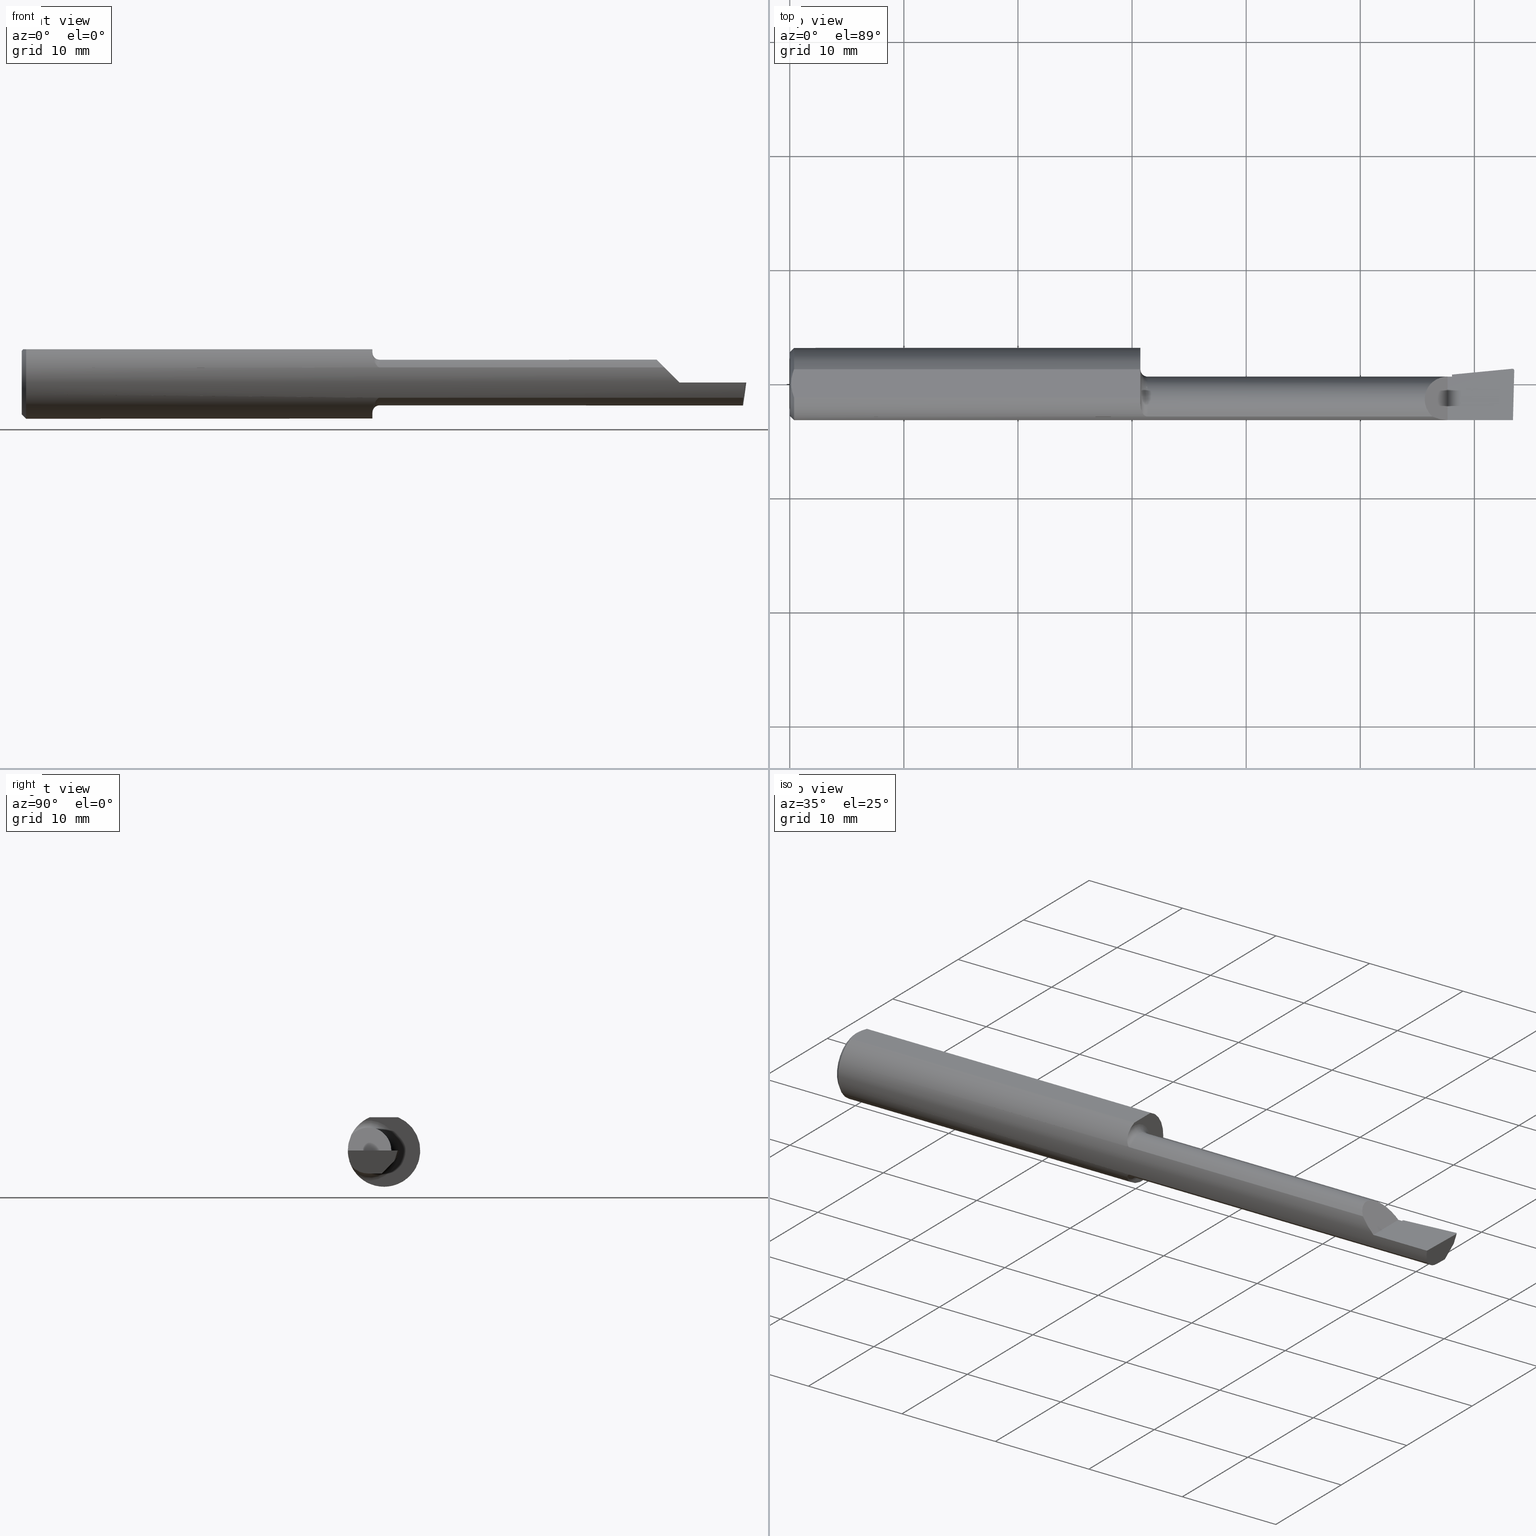
[diagram: canonical four-view strip — front | top / right | iso, engineering-drawing reading convention]
A machine part, canonical four-view strip (front | top / right | iso — engineering-drawing reading convention). The complete STEP part file that produces these views, byte-faithful:
ISO-10303-21;
HEADER;
FILE_DESCRIPTION (( 'STEP AP214' ),
    '1' );
FILE_NAME ('B1801250R.STEP',
    '2020-05-08T22:49:37',
    ( '' ),
    ( '' ),
    'SwSTEP 2.0',
    'SolidWorks 2018',
    '' );
FILE_SCHEMA (( 'AUTOMOTIVE_DESIGN' ));
ENDSEC;

DATA;
#1 = CARTESIAN_POINT ( 'NONE',  ( 2.510715839651728842, 0.04619605541595023929, -0.02600000000000000228 ) ) ;
#2 = PRESENTATION_LAYER_ASSIGNMENT (  '', '', ( #14 ) ) ;
#3 = PRESENTATION_STYLE_ASSIGNMENT (( #594 ) ) ;
#4 = DIRECTION ( 'NONE',  ( -0.09165774897393340337, 0.9519021185660615503, -0.2923717047227299970 ) ) ;
#5 = ORIENTED_EDGE ( 'NONE', *, *, #138, .T. ) ;
#6 = CARTESIAN_POINT ( 'NONE',  ( 1.760000000000000009, -0.1133222222222223657, -0.05239843939104725512 ) ) ;
#7 = DIRECTION ( 'NONE',  ( 1.000000000000000000, 0.0000000000000000000, 0.0000000000000000000 ) ) ;
#8 = ORIENTED_EDGE ( 'NONE', *, *, #373, .F. ) ;
#9 = ADVANCED_FACE ( 'NONE', ( #666 ), #220, .F. ) ;
#10 = VECTOR ( 'NONE', #166, 39.37007874015748143 ) ;
#11 = VERTEX_POINT ( 'NONE', #477 ) ;
#12 = SHAPE_DEFINITION_REPRESENTATION ( #105, #656 ) ;
#13 = CARTESIAN_POINT ( 'NONE',  ( 2.270000000000000018, 0.02514999999999986691, 2.816687638038912303E-17 ) ) ;
#14 = STYLED_ITEM ( 'NONE', ( #79 ), #84 ) ;
#15 = ORIENTED_EDGE ( 'NONE', *, *, #226, .T. ) ;
#16 = DIRECTION ( 'NONE',  ( -1.002614254341036985E-18, -0.2936076258024056806, -0.9559260233253797923 ) ) ;
#17 = CARTESIAN_POINT ( 'NONE',  ( 2.500000000000000000, 0.1748500000000000054, 0.1148500000000000076 ) ) ;
#18 = ORIENTED_EDGE ( 'NONE', *, *, #54, .F. ) ;
#19 = CARTESIAN_POINT ( 'NONE',  ( 0.005000000000000237761, 1.454187638523587873E-17, 0.1148500000000000076 ) ) ;
#20 = CARTESIAN_POINT ( 'NONE',  ( 2.477503890861344260, 0.007285921144409711510, -0.1200395610706565808 ) ) ;
#21 = CARTESIAN_POINT ( 'NONE',  ( 0.01499999999999999424, 0.04895916665957457392, 0.1148500000000000076 ) ) ;
#22 = ORIENTED_EDGE ( 'NONE', *, *, #297, .F. ) ;
#23 = CARTESIAN_POINT ( 'NONE',  ( 2.152626807264918618, -0.05593098589442790231, 0.1173731927350792209 ) ) ;
#24 = AXIS2_PLACEMENT_3D ( 'NONE', #625, #223, #585 ) ;
#25 = CARTESIAN_POINT ( 'NONE',  ( 1.233393805215129646, -0.1133222222232597165, 0.05239843938880395929 ) ) ;
#26 = CARTESIAN_POINT ( 'NONE',  ( 1.209999999999997300, -0.07604212793636108692, 0.09921827904968770484 ) ) ;
#27 = ORIENTED_EDGE ( 'NONE', *, *, #435, .F. ) ;
#28 = ORIENTED_EDGE ( 'NONE', *, *, #408, .T. ) ;
#29 = DIRECTION ( 'NONE',  ( -0.7071067811865516806, 0.0000000000000000000, 0.7071067811865431318 ) ) ;
#30 = ADVANCED_FACE ( 'NONE', ( #62 ), #378, .F. ) ;
#31 = AXIS2_PLACEMENT_3D ( 'NONE', #662, #616, #29 ) ;
#32 = EDGE_CURVE ( 'NONE', #280, #154, #515, .T. ) ;
#33 = CARTESIAN_POINT ( 'NONE',  ( 0.01499999999999999424, 0.0000000000000000000, -0.1248500000000000026 ) ) ;
#34 = ORIENTED_EDGE ( 'NONE', *, *, #200, .T. ) ;
#35 = CARTESIAN_POINT ( 'NONE',  ( 0.009410502401328815075, 0.03310661131402416191, 0.1148500000000000076 ) ) ;
#36 = VECTOR ( 'NONE', #262, 39.37007874015749564 ) ;
#37 = EDGE_LOOP ( 'NONE', ( #5, #473 ) ) ;
#38 = AXIS2_PLACEMENT_3D ( 'NONE', #316, #143, #465 ) ;
#39 = LINE ( 'NONE', #400, #157 ) ;
#40 = EDGE_CURVE ( 'NONE', #427, #478, #112, .T. ) ;
#41 = VERTEX_POINT ( 'NONE', #152 ) ;
#42 = ORIENTED_EDGE ( 'NONE', *, *, #272, .T. ) ;
#43 = CYLINDRICAL_SURFACE ( 'NONE', #606, 0.07914999999999991487 ) ;
#44 = DIRECTION ( 'NONE',  ( -2.377784481325426013E-18, -0.6963153109074924352, -0.7177360153954948085 ) ) ;
#45 = ORIENTED_EDGE ( 'NONE', *, *, #200, .F. ) ;
#46 = LINE ( 'NONE', #469, #268 ) ;
#47 = CIRCLE ( 'NONE', #667, 0.1041499999999998677 ) ;
#48 = ORIENTED_EDGE ( 'NONE', *, *, #213, .T. ) ;
#49 = DIRECTION ( 'NONE',  ( -1.000000000000000000, -0.0000000000000000000, -0.0000000000000000000 ) ) ;
#50 = VECTOR ( 'NONE', #269, 39.37007874015748143 ) ;
#51 = ORIENTED_EDGE ( 'NONE', *, *, #292, .F. ) ;
#52 = LINE ( 'NONE', #474, #491 ) ;
#53 = CARTESIAN_POINT ( 'NONE',  ( 1.218837986083220359, -0.1048226606062679089, -0.06804511026469604873 ) ) ;
#54 = EDGE_CURVE ( 'NONE', #255, #94, #52, .T. ) ;
#55 = DIRECTION ( 'NONE',  ( -0.1240019227990222656, -0.3022330132596686703, -0.9451342385281183978 ) ) ;
#56 =( BOUNDED_CURVE ( )  B_SPLINE_CURVE ( 3, ( #567, #651, #568, #196 ),
 .UNSPECIFIED., .F., .T. ) 
 B_SPLINE_CURVE_WITH_KNOTS ( ( 4, 4 ),
 ( 1.953092279228668460, 3.511516179717886210 ),
 .UNSPECIFIED. ) 
 CURVE ( )  GEOMETRIC_REPRESENTATION_ITEM ( )  RATIONAL_B_SPLINE_CURVE ( ( 1.000000000000000000, 0.8076450242550503589, 0.8076450242550503589, 1.000000000000000000 ) ) 
 REPRESENTATION_ITEM ( '' )  );
#57 = DIRECTION ( 'NONE',  ( 0.1053106618242760639, 0.6976485211320146984, 0.7086580314005095360 ) ) ;
#58 = ORIENTED_EDGE ( 'NONE', *, *, #292, .T. ) ;
#59 = EDGE_LOOP ( 'NONE', ( #22, #211, #178, #116 ) ) ;
#60 = EDGE_CURVE ( 'NONE', #227, #222, #339, .T. ) ;
#61 = DIRECTION ( 'NONE',  ( -1.000000000000000000, -0.0000000000000000000, -0.0000000000000000000 ) ) ;
#62 = FACE_OUTER_BOUND ( 'NONE', #397, .T. ) ;
#63 = AXIS2_PLACEMENT_3D ( 'NONE', #296, #245, #560 ) ;
#64 = ORIENTED_EDGE ( 'NONE', *, *, #121, .T. ) ;
#65 = EDGE_LOOP ( 'NONE', ( #51, #417, #344 ) ) ;
#66 = DIRECTION ( 'NONE',  ( -1.000000000000000000, -0.0000000000000000000, -0.0000000000000000000 ) ) ;
#67 = APPLICATION_PROTOCOL_DEFINITION ( 'draft international standard', 'automotive_design', 1998, #243 ) ;
#68 = EDGE_CURVE ( 'NONE', #506, #158, #479, .T. ) ;
#69 = CYLINDRICAL_SURFACE ( 'NONE', #402, 0.006500000000000000569 ) ;
#70 = LINE ( 'NONE', #6, #493 ) ;
#71 = FILL_AREA_STYLE ('',( #342 ) ) ;
#72 = CARTESIAN_POINT ( 'NONE',  ( 0.01499999999999999424, 1.528971528735470422E-17, 0.1248500000000000026 ) ) ;
#73 = ORIENTED_EDGE ( 'NONE', *, *, #32, .T. ) ;
#74 = PLANE ( 'NONE',  #603 ) ;
#75 = CARTESIAN_POINT ( 'NONE',  ( 2.510715839651728842, 0.04619605541595023929, -0.02600000000000000228 ) ) ;
#76 = CARTESIAN_POINT ( 'NONE',  ( 2.486868858499483803, -0.07705019563525719595, -0.07914999999999994262 ) ) ;
#77 = EDGE_CURVE ( 'NONE', #613, #538, #461, .T. ) ;
#78 = VERTEX_POINT ( 'NONE', #522 ) ;
#79 = PRESENTATION_STYLE_ASSIGNMENT (( #204 ) ) ;
#80 = B_SPLINE_CURVE_WITH_KNOTS ( 'NONE', 3,
 ( #665, #380, #325, #549, #288, #636 ),
 .UNSPECIFIED., .F., .F.,
 ( 4, 2, 4 ),
 ( 0.001029394377391489035, 0.001663875367397493060, 0.002298356357403497086 ),
 .UNSPECIFIED. ) ;
#81 = CARTESIAN_POINT ( 'NONE',  ( 1.231855009147952318, -0.1130869929873387636, 0.05291095013438972677 ) ) ;
#82 = VECTOR ( 'NONE', #16, 39.37007874015748854 ) ;
#83 = VERTEX_POINT ( 'NONE', #33 ) ;
#84 = MANIFOLD_SOLID_BREP ( 'D34CBC68-1747-4350-8BDF-BF1BA9863E7A-GAAFaceID16', #320 ) ;
#85 = ORIENTED_EDGE ( 'NONE', *, *, #256, .T. ) ;
#86 = AXIS2_PLACEMENT_3D ( 'NONE', #369, #657, #314 ) ;
#87 =( NAMED_UNIT ( * ) SI_UNIT ( $, .STERADIAN. ) SOLID_ANGLE_UNIT ( ) );
#88 = LINE ( 'NONE', #501, #197 ) ;
#89 = COLOUR_RGB ( '',0.7529411764705882248, 0.7529411764705882248, 0.7529411764705882248 ) ;
#90 = DIRECTION ( 'NONE',  ( 0.0000000000000000000, -1.000000000000000000, 0.0000000000000000000 ) ) ;
#91 = AXIS2_PLACEMENT_3D ( 'NONE', #390, #49, #439 ) ;
#92 = EDGE_LOOP ( 'NONE', ( #257, #586, #42, #326, #490 ) ) ;
#93 =( GEOMETRIC_REPRESENTATION_CONTEXT ( 3 ) GLOBAL_UNCERTAINTY_ASSIGNED_CONTEXT ( ( #238 ) ) GLOBAL_UNIT_ASSIGNED_CONTEXT ( ( #146, #470, #87 ) ) REPRESENTATION_CONTEXT ( 'NONE', 'WORKASPACE' ) );
#94 = VERTEX_POINT ( 'NONE', #418 ) ;
#95 = ORIENTED_EDGE ( 'NONE', *, *, #77, .F. ) ;
#96 = VERTEX_POINT ( 'NONE', #366 ) ;
#97 = CARTESIAN_POINT ( 'NONE',  ( 2.285000000000000142, -0.02710165559382494982, -0.07914999999999994262 ) ) ;
#98 = AXIS2_PLACEMENT_3D ( 'NONE', #147, #472, #90 ) ;
#99 = ORIENTED_EDGE ( 'NONE', *, *, #323, .F. ) ;
#100 = CARTESIAN_POINT ( 'NONE',  ( 0.01499999999999999424, 0.0000000000000000000, -0.1248500000000000026 ) ) ;
#101 = ORIENTED_EDGE ( 'NONE', *, *, #256, .F. ) ;
#102 = ORIENTED_EDGE ( 'NONE', *, *, #423, .F. ) ;
#103 = CARTESIAN_POINT ( 'NONE',  ( 1.210000000000000187, -0.07089166666666693595, -0.1027710761704001136 ) ) ;
#104 = AXIS2_PLACEMENT_3D ( 'NONE', #324, #214, #619 ) ;
#105 = PRODUCT_DEFINITION_SHAPE ( 'NONE', 'NONE',  #621 ) ;
#106 = EDGE_CURVE ( 'NONE', #83, #569, #228, .T. ) ;
#107 = CARTESIAN_POINT ( 'NONE',  ( 2.509953961983673043, 0.05410845752520212354, -6.829619984160658046E-17 ) ) ;
#108 = APPLICATION_PROTOCOL_DEFINITION ( 'draft international standard', 'automotive_design', 1998, #509 ) ;
#109 = CIRCLE ( 'NONE', #91, 0.1248500000000000026 ) ;
#110 = AXIS2_PLACEMENT_3D ( 'NONE', #570, #202, #517 ) ;
#111 = CARTESIAN_POINT ( 'NONE',  ( 2.494935772196837487, 0.03388506613407609586, -0.03712352112763144668 ) ) ;
#112 = LINE ( 'NONE', #319, #36 ) ;
#113 = CARTESIAN_POINT ( 'NONE',  ( 2.488690395572168423, -0.007488501277203561159, -0.07914999999999992875 ) ) ;
#114 = DIRECTION ( 'NONE',  ( 0.0000000000000000000, 0.0000000000000000000, 1.000000000000000000 ) ) ;
#115 = ORIENTED_EDGE ( 'NONE', *, *, #367, .T. ) ;
#116 = ORIENTED_EDGE ( 'NONE', *, *, #440, .F. ) ;
#117 = EDGE_CURVE ( 'NONE', #270, #633, #265, .T. ) ;
#118 = CARTESIAN_POINT ( 'NONE',  ( 2.495338905960690301, -0.1248500000000000582, -6.637417838016179921E-17 ) ) ;
#119 = PLANE ( 'NONE',  #419 ) ;
#120 = CARTESIAN_POINT ( 'NONE',  ( 1.210000000000000187, 0.1748500000000000054, 0.1148500000000000076 ) ) ;
#121 = EDGE_CURVE ( 'NONE', #94, #427, #125, .T. ) ;
#122 = ORIENTED_EDGE ( 'NONE', *, *, #261, .T. ) ;
#123 = FACE_OUTER_BOUND ( 'NONE', #611, .T. ) ;
#124 = VECTOR ( 'NONE', #492, 39.37007874015748854 ) ;
#125 =( BOUNDED_CURVE ( )  B_SPLINE_CURVE ( 3, ( #144, #312, #365, #653 ),
 .UNSPECIFIED., .F., .T. ) 
 B_SPLINE_CURVE_WITH_KNOTS ( ( 4, 4 ),
 ( 3.156599629463097134, 4.715023529952358849 ),
 .UNSPECIFIED. ) 
 CURVE ( )  GEOMETRIC_REPRESENTATION_ITEM ( )  RATIONAL_B_SPLINE_CURVE ( ( 1.000000000000000000, 0.8076450242550402558, 0.8076450242550402558, 1.000000000000000000 ) ) 
 REPRESENTATION_ITEM ( '' )  );
#126 = CARTESIAN_POINT ( 'NONE',  ( 2.285000000000000142, 0.03244785463752900695, 0.0000000000000000000 ) ) ;
#127 = CARTESIAN_POINT ( 'NONE',  ( 2.217601560608951861, -0.1133222222222223519, 0.05239843939104727594 ) ) ;
#128 = CARTESIAN_POINT ( 'NONE',  ( 2.285000000000000142, 0.03244785463752900695, 0.0000000000000000000 ) ) ;
#129 = VERTEX_POINT ( 'NONE', #201 ) ;
#130 = DIRECTION ( 'NONE',  ( 0.0000000000000000000, 0.9524855432518746223, -0.3045837978228342902 ) ) ;
#131 =( CONVERSION_BASED_UNIT ( 'INCH', #206 ) LENGTH_UNIT ( ) NAMED_UNIT ( #361 ) );
#132 = ADVANCED_FACE ( 'NONE', ( #123 ), #416, .F. ) ;
#133 = B_SPLINE_CURVE_WITH_KNOTS ( 'NONE', 3,
 ( #19, #456, #374, #35, #424, #267 ),
 .UNSPECIFIED., .F., .F.,
 ( 4, 2, 4 ),
 ( 0.002298356357403497086, 0.002932796277434359007, 0.003567236197465221362 ),
 .UNSPECIFIED. ) ;
#134 = LINE ( 'NONE', #333, #540 ) ;
#135 = CARTESIAN_POINT ( 'NONE',  ( 2.234090882882976192, -0.1209466293052443298, 0.03590911711702311770 ) ) ;
#136 = ORIENTED_EDGE ( 'NONE', *, *, #155, .T. ) ;
#137 = CARTESIAN_POINT ( 'NONE',  ( 1.228003366130774765, -0.1118869025553488744, 0.05540929543234553167 ) ) ;
#138 = EDGE_CURVE ( 'NONE', #258, #129, #216, .T. ) ;
#139 = PRODUCT_DEFINITION_CONTEXT ( 'detailed design', #243, 'design' ) ;
#140 = CYLINDRICAL_SURFACE ( 'NONE', #516, 0.006500000000000000569 ) ;
#141 = ORIENTED_EDGE ( 'NONE', *, *, #117, .T. ) ;
#142 = EDGE_LOOP ( 'NONE', ( #371, #428, #263, #659 ) ) ;
#143 = DIRECTION ( 'NONE',  ( -4.194046792260684025E-16, 0.0000000000000000000, -1.000000000000000000 ) ) ;
#144 = CARTESIAN_POINT ( 'NONE',  ( 2.490095884891770694, 0.04416786174452201619, -0.02604403198038579906 ) ) ;
#145 = ORIENTED_EDGE ( 'NONE', *, *, #188, .T. ) ;
#146 =( CONVERSION_BASED_UNIT ( 'INCH', #354 ) LENGTH_UNIT ( ) NAMED_UNIT ( #511 ) );
#147 = CARTESIAN_POINT ( 'NONE',  ( 2.285000000000000142, -0.05399999999999999939, 0.0000000000000000000 ) ) ;
#148 = ORIENTED_EDGE ( 'NONE', *, *, #367, .F. ) ;
#149 = AXIS2_PLACEMENT_3D ( 'NONE', #574, #208, #525 ) ;
#150 = VECTOR ( 'NONE', #66, 39.37007874015748143 ) ;
#151 = EDGE_CURVE ( 'NONE', #478, #255, #56, .T. ) ;
#152 = CARTESIAN_POINT ( 'NONE',  ( 2.492906680581910006, 0.05246699102467097114, -6.532122848641467145E-17 ) ) ;
#153 = CARTESIAN_POINT ( 'NONE',  ( 1.210000000000000187, 0.04895916665957456004, 0.1148500000000000076 ) ) ;
#154 = VERTEX_POINT ( 'NONE', #413 ) ;
#155 = EDGE_CURVE ( 'NONE', #562, #280, #193, .T. ) ;
#156 = CARTESIAN_POINT ( 'NONE',  ( 2.285000000000000142, 0.02898381944558134707, -0.01127818590082938985 ) ) ;
#157 = VECTOR ( 'NONE', #454, 39.37007874015748143 ) ;
#158 = VERTEX_POINT ( 'NONE', #415 ) ;
#159 = ADVANCED_FACE ( 'NONE', ( #321 ), #608, .T. ) ;
#160 = ORIENTED_EDGE ( 'NONE', *, *, #218, .T. ) ;
#161 = DIRECTION ( 'NONE',  ( 0.0000000000000000000, 0.0000000000000000000, -1.000000000000000000 ) ) ;
#162 = EDGE_CURVE ( 'NONE', #11, #478, #301, .T. ) ;
#163 = CARTESIAN_POINT ( 'NONE',  ( 2.285000000000000142, -0.05399999999999999939, 0.0000000000000000000 ) ) ;
#164 = ORIENTED_EDGE ( 'NONE', *, *, #363, .T. ) ;
#165 = CARTESIAN_POINT ( 'NONE',  ( 2.285000000000000142, 0.005014495618354286935, -0.04604586163080774674 ) ) ;
#166 = DIRECTION ( 'NONE',  ( 0.9953961983671787417, 0.09584575252022459191, -4.174738232790345673E-16 ) ) ;
#167 = ORIENTED_EDGE ( 'NONE', *, *, #235, .T. ) ;
#168 = DIRECTION ( 'NONE',  ( 0.0000000000000000000, 0.0000000000000000000, -1.000000000000000000 ) ) ;
#169 = CIRCLE ( 'NONE', #450, 0.1098499999999996424 ) ;
#170 = PLANE ( 'NONE',  #532 ) ;
#171 = EDGE_LOOP ( 'NONE', ( #164, #372, #349, #551, #145, #463 ) ) ;
#172 = CARTESIAN_POINT ( 'NONE',  ( 1.229195140613335457, -0.1123729516825158897, -0.05441079362540557351 ) ) ;
#173 = VECTOR ( 'NONE', #57, 39.37007874015748854 ) ;
#174 = VERTEX_POINT ( 'NONE', #21 ) ;
#175 = EDGE_CURVE ( 'NONE', #221, #158, #46, .T. ) ;
#176 = CARTESIAN_POINT ( 'NONE',  ( 2.489204846642126157, -0.1133222222222223657, -0.05239843939104725512 ) ) ;
#177 = DIRECTION ( 'NONE',  ( 0.0000000000000000000, 0.9524855432518746223, -0.3045837978228342902 ) ) ;
#178 = ORIENTED_EDGE ( 'NONE', *, *, #313, .F. ) ;
#179 = VECTOR ( 'NONE', #44, 39.37007874015748854 ) ;
#180 = ADVANCED_FACE ( 'NONE', ( #443 ), #604, .T. ) ;
#181 = DIRECTION ( 'NONE',  ( 0.0000000000000000000, -1.000000000000000000, 0.0000000000000000000 ) ) ;
#182 = AXIS2_PLACEMENT_3D ( 'NONE', #396, #114, #246 ) ;
#183 = DIRECTION ( 'NONE',  ( 1.000000000000000000, -3.414809992080329023E-18, 0.0000000000000000000 ) ) ;
#184 = DIRECTION ( 'NONE',  ( -3.414809992080329023E-18, -1.000000000000000000, 0.0000000000000000000 ) ) ;
#185 = CARTESIAN_POINT ( 'NONE',  ( 2.270000000000000018, -0.1248500000000000165, 2.816687638038912303E-17 ) ) ;
#186 =( GEOMETRIC_REPRESENTATION_CONTEXT ( 3 ) GLOBAL_UNCERTAINTY_ASSIGNED_CONTEXT ( ( #502 ) ) GLOBAL_UNIT_ASSIGNED_CONTEXT ( ( #357, #348, #512 ) ) REPRESENTATION_CONTEXT ( 'NONE', 'WORKASPACE' ) );
#187 = CARTESIAN_POINT ( 'NONE',  ( 2.487482489302630828, -0.09806266089631200666, -0.06967435635555044304 ) ) ;
#188 = EDGE_CURVE ( 'NONE', #382, #78, #434, .T. ) ;
#189 = ADVANCED_FACE ( 'NONE', ( #310 ), #295, .T. ) ;
#190 = ORIENTED_EDGE ( 'NONE', *, *, #363, .F. ) ;
#191 = CARTESIAN_POINT ( 'NONE',  ( 2.490095884891770694, 0.04416786174452201619, -0.02604403198038579906 ) ) ;
#192 = DIRECTION ( 'NONE',  ( 3.414809992080329023E-18, 1.000000000000000000, 0.0000000000000000000 ) ) ;
#193 = B_SPLINE_CURVE_WITH_KNOTS ( 'NONE', 3,
 ( #362, #26, #650, #307, #609, #250, #566, #195, #513, #137, #462, #81, #25, #359 ),
 .UNSPECIFIED., .F., .F.,
 ( 4, 2, 2, 2, 2, 2, 4 ),
 ( 6.218642020841704367E-05, 0.0005341583913332085317, 0.001006130362457999857, 0.001478102333582790966, 0.001714088319145186520, 0.001832081311926387658, 0.001950074304707597470 ),
 .UNSPECIFIED. ) ;
#194 = ORIENTED_EDGE ( 'NONE', *, *, #391, .F. ) ;
#195 = CARTESIAN_POINT ( 'NONE',  ( 1.223217602974939755, -0.1090277136498279537, 0.06089509507572530428 ) ) ;
#196 = CARTESIAN_POINT ( 'NONE',  ( 2.493512870449331675, 0.05249616680637380489, -5.122214988120493535E-17 ) ) ;
#197 = VECTOR ( 'NONE', #183, 39.37007874015748143 ) ;
#198 = EDGE_LOOP ( 'NONE', ( #332, #205 ) ) ;
#199 = CIRCLE ( 'NONE', #249, 0.07914999999999995650 ) ;
#200 = EDGE_CURVE ( 'NONE', #280, #96, #88, .T. ) ;
#201 = CARTESIAN_POINT ( 'NONE',  ( 0.0000000000000000000, 1.437123018799416669E-17, 0.1098499999999996424 ) ) ;
#202 = DIRECTION ( 'NONE',  ( -1.000000000000000000, -0.0000000000000000000, -0.0000000000000000000 ) ) ;
#203 = MECHANICAL_DESIGN_GEOMETRIC_PRESENTATION_REPRESENTATION (  '', ( #14 ), #93 ) ;
#204 = SURFACE_STYLE_USAGE ( .BOTH. , #572 ) ;
#205 = ORIENTED_EDGE ( 'NONE', *, *, #276, .T. ) ;
#206 = LENGTH_MEASURE_WITH_UNIT ( LENGTH_MEASURE( 0.02539999999999999897 ), #598 );
#207 = LINE ( 'NONE', #75, #387 ) ;
#208 = DIRECTION ( 'NONE',  ( -1.000000000000000000, 3.414809992080329023E-18, -0.0000000000000000000 ) ) ;
#209 = VECTOR ( 'NONE', #247, 39.37007874015748854 ) ;
#210 = ORIENTED_EDGE ( 'NONE', *, *, #272, .F. ) ;
#211 = ORIENTED_EDGE ( 'NONE', *, *, #54, .T. ) ;
#212 = DIRECTION ( 'NONE',  ( 0.0000000000000000000, -1.000000000000000000, 8.537024980200821325E-17 ) ) ;
#213 = EDGE_CURVE ( 'NONE', #78, #227, #39, .T. ) ;
#214 = DIRECTION ( 'NONE',  ( -1.000000000000000000, 3.414809992080329023E-18, -0.0000000000000000000 ) ) ;
#215 = PLANE ( 'NONE',  #352 ) ;
#216 = CIRCLE ( 'NONE', #277, 0.1098499999999996424 ) ;
#217 = ORIENTED_EDGE ( 'NONE', *, *, #213, .F. ) ;
#218 = EDGE_CURVE ( 'NONE', #293, #174, #133, .T. ) ;
#219 = DIRECTION ( 'NONE',  ( 0.0000000000000000000, -1.000000000000000000, 0.0000000000000000000 ) ) ;
#220 = TOROIDAL_SURFACE ( 'NONE', #104, 0.1041499999999998677, 0.02499999999999993894 ) ;
#221 = VERTEX_POINT ( 'NONE', #426 ) ;
#222 = VERTEX_POINT ( 'NONE', #97 ) ;
#223 = DIRECTION ( 'NONE',  ( 1.000000000000000000, -3.414809992080329023E-18, 0.0000000000000000000 ) ) ;
#224 = CARTESIAN_POINT ( 'NONE',  ( 1.210000000000000187, -0.04895916665957457392, 0.1148500000000000215 ) ) ;
#225 = PLANE ( 'NONE',  #664 ) ;
#226 = EDGE_CURVE ( 'NONE', #129, #293, #460, .T. ) ;
#227 = VERTEX_POINT ( 'NONE', #481 ) ;
#228 = CIRCLE ( 'NONE', #110, 0.1248500000000000026 ) ;
#229 = CARTESIAN_POINT ( 'NONE',  ( 1.216709462345916481, -0.1014961360546401126, -0.07295290821911692980 ) ) ;
#230 = DIRECTION ( 'NONE',  ( -1.000000000000000000, 3.414809992080329023E-18, -0.0000000000000000000 ) ) ;
#231 = CARTESIAN_POINT ( 'NONE',  ( 2.285000000000000142, 0.005014495618354286935, -0.04604586163080774674 ) ) ;
#232 = ORIENTED_EDGE ( 'NONE', *, *, #440, .T. ) ;
#233 = ADVANCED_FACE ( 'NONE', ( #615 ), #626, .T. ) ;
#234 = CARTESIAN_POINT ( 'NONE',  ( 0.0000000000000000000, 0.0000000000000000000, 0.0000000000000000000 ) ) ;
#235 = EDGE_CURVE ( 'NONE', #633, #41, #486, .T. ) ;
#236 = EDGE_CURVE ( 'NONE', #336, #270, #438, .T. ) ;
#237 = CARTESIAN_POINT ( 'NONE',  ( 0.01499999999999999424, 0.0000000000000000000, 0.0000000000000000000 ) ) ;
#238 = UNCERTAINTY_MEASURE_WITH_UNIT (LENGTH_MEASURE( 1.000000000000000082E-05 ), #146, 'distance_accuracy_value', 'NONE');
#239 = DIRECTION ( 'NONE',  ( -1.000000000000000000, 3.414809992080329023E-18, -0.0000000000000000000 ) ) ;
#240 = VERTEX_POINT ( 'NONE', #224 ) ;
#241 = DIRECTION ( 'NONE',  ( 0.0000000000000000000, -1.000000000000000000, 0.0000000000000000000 ) ) ;
#242 = DIRECTION ( 'NONE',  ( -1.000000000000000000, 3.414809992080329023E-18, 0.0000000000000000000 ) ) ;
#243 = APPLICATION_CONTEXT ( 'automotive_design' ) ;
#244 = EDGE_CURVE ( 'NONE', #240, #562, #545, .T. ) ;
#245 = DIRECTION ( 'NONE',  ( -1.000000000000000000, 3.414809992080329023E-18, 0.0000000000000000000 ) ) ;
#246 = DIRECTION ( 'NONE',  ( 1.000000000000000000, 0.0000000000000000000, 0.0000000000000000000 ) ) ;
#247 = DIRECTION ( 'NONE',  ( 0.02617694830793555402, 0.9996573249755555945, -1.124167145980600393E-17 ) ) ;
#248 = PRODUCT_CONTEXT ( 'NONE', #509, 'mechanical' ) ;
#249 = AXIS2_PLACEMENT_3D ( 'NONE', #601, #239, #181 ) ;
#250 = CARTESIAN_POINT ( 'NONE',  ( 1.216702553529778186, -0.1014824713796366601, 0.07297083456247520361 ) ) ;
#251 = ORIENTED_EDGE ( 'NONE', *, *, #386, .F. ) ;
#252 = ORIENTED_EDGE ( 'NONE', *, *, #471, .T. ) ;
#253 = DIRECTION ( 'NONE',  ( 0.0000000000000000000, 0.0000000000000000000, 1.000000000000000000 ) ) ;
#254 =( BOUNDED_CURVE ( )  B_SPLINE_CURVE ( 3, ( #185, #329, #135, #127 ),
 .UNSPECIFIED., .F., .T. ) 
 B_SPLINE_CURVE_WITH_KNOTS ( ( 4, 4 ),
 ( 4.712388980384688786, 5.145493999647444028 ),
 .UNSPECIFIED. ) 
 CURVE ( )  GEOMETRIC_REPRESENTATION_ITEM ( )  RATIONAL_B_SPLINE_CURVE ( ( 1.000000000000000000, 0.9844293286710339430, 0.9844293286710339430, 1.000000000000000000 ) ) 
 REPRESENTATION_ITEM ( '' )  );
#255 = VERTEX_POINT ( 'NONE', #535 ) ;
#256 = EDGE_CURVE ( 'NONE', #599, #336, #476, .T. ) ;
#257 = ORIENTED_EDGE ( 'NONE', *, *, #226, .F. ) ;
#258 = VERTEX_POINT ( 'NONE', #483 ) ;
#259 = FILL_AREA_STYLE ('',( #614 ) ) ;
#260 = FACE_OUTER_BOUND ( 'NONE', #379, .T. ) ;
#261 = EDGE_CURVE ( 'NONE', #270, #158, #658, .T. ) ;
#262 = DIRECTION ( 'NONE',  ( 0.1240019227990222378, 0.3022330132596685592, 0.9451342385281183978 ) ) ;
#263 = ORIENTED_EDGE ( 'NONE', *, *, #244, .T. ) ;
#264 = STYLED_ITEM ( 'NONE', ( #3 ), #656 ) ;
#265 = LINE ( 'NONE', #654, #283 ) ;
#266 = ORIENTED_EDGE ( 'NONE', *, *, #175, .F. ) ;
#267 = CARTESIAN_POINT ( 'NONE',  ( 0.01499999999999999424, 0.04895916665957457392, 0.1148500000000000076 ) ) ;
#268 = VECTOR ( 'NONE', #644, 39.37007874015748854 ) ;
#269 = DIRECTION ( 'NONE',  ( -0.0000000000000000000, 1.000000000000000000, -0.0000000000000000000 ) ) ;
#270 = VERTEX_POINT ( 'NONE', #533 ) ;
#271 = AXIS2_PLACEMENT_3D ( 'NONE', #646, #7, #168 ) ;
#272 = EDGE_CURVE ( 'NONE', #258, #83, #589, .T. ) ;
#273 = CARTESIAN_POINT ( 'NONE',  ( 2.702822108735687789E-19, 0.02514999999999990160, 9.802154982235641300E-16 ) ) ;
#274 = DIRECTION ( 'NONE',  ( -1.000000000000000000, -0.0000000000000000000, -0.0000000000000000000 ) ) ;
#275 = LINE ( 'NONE', #165, #179 ) ;
#276 = EDGE_CURVE ( 'NONE', #158, #506, #275, .T. ) ;
#277 = AXIS2_PLACEMENT_3D ( 'NONE', #309, #610, #253 ) ;
#278 = CARTESIAN_POINT ( 'NONE',  ( 1.212089430766778220, -0.08992021952243414717, -0.08683155323701792494 ) ) ;
#279 = FACE_OUTER_BOUND ( 'NONE', #389, .T. ) ;
#280 = VERTEX_POINT ( 'NONE', #624 ) ;
#281 = CONICAL_SURFACE ( 'NONE', #271, 0.1248500000000000026, 0.7853981633974602694 ) ;
#282 = PRODUCT_DEFINITION_FORMATION_WITH_SPECIFIED_SOURCE ( 'ANY', '', #507, .NOT_KNOWN. ) ;
#283 = VECTOR ( 'NONE', #612, 39.37007874015748143 ) ;
#284 = EDGE_CURVE ( 'NONE', #569, #293, #80, .T. ) ;
#285 = CARTESIAN_POINT ( 'NONE',  ( 2.489495472034650714, 0.04415276641570021338, -0.02600000000000000228 ) ) ;
#286 = DIRECTION ( 'NONE',  ( 0.0000000000000000000, 0.0000000000000000000, 1.000000000000000000 ) ) ;
#287 = ADVANCED_FACE ( 'NONE', ( #315 ), #43, .T. ) ;
#288 = CARTESIAN_POINT ( 'NONE',  ( 0.005000000000000194393, -0.008410771716546815852, 0.1148500000000000076 ) ) ;
#289 = FACE_OUTER_BOUND ( 'NONE', #534, .T. ) ;
#290 = CARTESIAN_POINT ( 'NONE',  ( 2.493310817358693754, 0.05249616680637381877, -5.124634811486052309E-17 ) ) ;
#291 = ORIENTED_EDGE ( 'NONE', *, *, #652, .F. ) ;
#292 = EDGE_CURVE ( 'NONE', #506, #227, #199, .T. ) ;
#293 = VERTEX_POINT ( 'NONE', #637 ) ;
#294 = CARTESIAN_POINT ( 'NONE',  ( 2.183308174668249446, 0.02515000000000005426, 0.08669182533174922545 ) ) ;
#295 = PLANE ( 'NONE',  #446 ) ;
#296 = CARTESIAN_POINT ( 'NONE',  ( 2.285000000000000142, 0.03244785463752900695, 0.0000000000000000000 ) ) ;
#297 = EDGE_CURVE ( 'NONE', #255, #41, #480, .T. ) ;
#298 = DIRECTION ( 'NONE',  ( -0.1240019227990222656, -0.3022330132596686703, -0.9451342385281183978 ) ) ;
#299 = ORIENTED_EDGE ( 'NONE', *, *, #297, .T. ) ;
#300 = B_SPLINE_CURVE_WITH_KNOTS ( 'NONE', 3,
 ( #494, #395, #539, #172, #341, #337, #631, #53, #229, #536, #278, #429, #433, #103 ),
 .UNSPECIFIED., .F., .F.,
 ( 4, 2, 2, 2, 2, 2, 4 ),
 ( 1.961860195742902937E-07, 0.0001199556417433944404, 0.0002397150974672145746, 0.0004792340089148614023, 0.0009582718318101550578, 0.001437309654705448605, 0.001916347477600742260 ),
 .UNSPECIFIED. ) ;
#301 = LINE ( 'NONE', #510, #209 ) ;
#302 = VECTOR ( 'NONE', #593, 39.37007874015749564 ) ;
#303 = DIRECTION ( 'NONE',  ( 0.1219104985253554180, 0.0000000000000000000, 0.9925410975618587095 ) ) ;
#304 = MECHANICAL_DESIGN_GEOMETRIC_PRESENTATION_REPRESENTATION (  '', ( #264 ), #186 ) ;
#305 = LINE ( 'NONE', #663, #173 ) ;
#306 = ORIENTED_EDGE ( 'NONE', *, *, #495, .T. ) ;
#307 = CARTESIAN_POINT ( 'NONE',  ( 1.212066153268988922, -0.08982957272875712051, 0.08692514756739015691 ) ) ;
#308 = AXIS2_PLACEMENT_3D ( 'NONE', #647, #563, #192 ) ;
#309 = CARTESIAN_POINT ( 'NONE',  ( 0.0000000000000000000, 0.0000000000000000000, 0.0000000000000000000 ) ) ;
#310 = FACE_OUTER_BOUND ( 'NONE', #65, .T. ) ;
#311 = EDGE_LOOP ( 'NONE', ( #437, #403, #591, #34, #524, #596, #122, #375, #58, #217 ) ) ;
#312 = CARTESIAN_POINT ( 'NONE',  ( 2.493823174557825428, 0.04399139898587246800, -0.02659586115756921651 ) ) ;
#313 = EDGE_CURVE ( 'NONE', #441, #94, #526, .T. ) ;
#314 = DIRECTION ( 'NONE',  ( 0.0000000000000000000, 1.000000000000000000, 0.0000000000000000000 ) ) ;
#315 = FACE_OUTER_BOUND ( 'NONE', #311, .T. ) ;
#316 = CARTESIAN_POINT ( 'NONE',  ( 2.500000000000000000, -0.2500000000000000555, -6.829619984160658046E-17 ) ) ;
#317 = ADVANCED_FACE ( 'NONE', ( #559 ), #69, .T. ) ;
#318 = EDGE_CURVE ( 'NONE', #538, #240, #411, .T. ) ;
#319 = CARTESIAN_POINT ( 'NONE',  ( 2.500086462864389958, 0.04643897437746653117, 0.002134693520066727971 ) ) ;
#320 = CLOSED_SHELL ( 'NONE', ( #317, #561, #180, #189, #547, #468, #630, #132, #30, #605, #537, #9, #159, #287, #406, #233, #355, #643, #377 ) ) ;
#321 = FACE_OUTER_BOUND ( 'NONE', #142, .T. ) ;
#322 = CARTESIAN_POINT ( 'NONE',  ( 2.500000000000000000, -0.05399999999999999939, -0.07914999999999994262 ) ) ;
#323 = EDGE_CURVE ( 'NONE', #240, #569, #422, .T. ) ;
#324 = CARTESIAN_POINT ( 'NONE',  ( 1.235000000000000098, -0.05399999999999999939, 0.0000000000000000000 ) ) ;
#325 = CARTESIAN_POINT ( 'NONE',  ( 0.009415874254822530556, -0.03313958207962815899, 0.1148500000000000354 ) ) ;
#326 = ORIENTED_EDGE ( 'NONE', *, *, #106, .T. ) ;
#327 = ORIENTED_EDGE ( 'NONE', *, *, #236, .F. ) ;
#328 = DIRECTION ( 'NONE',  ( -3.414809992080329023E-18, -1.000000000000000000, 0.0000000000000000000 ) ) ;
#329 = CARTESIAN_POINT ( 'NONE',  ( 2.251833290544947630, -0.1248500000000000165, 0.01816670945505155857 ) ) ;
#330 = EDGE_CURVE ( 'NONE', #562, #613, #47, .T. ) ;
#331 = DIRECTION ( 'NONE',  ( -0.06894566448119622548, 0.7160281025913035613, -0.6946583704589933683 ) ) ;
#332 = ORIENTED_EDGE ( 'NONE', *, *, #68, .T. ) ;
#333 = CARTESIAN_POINT ( 'NONE',  ( 0.0000000000000000000, 0.04895916665957457392, 0.1148500000000000076 ) ) ;
#334 = ORIENTED_EDGE ( 'NONE', *, *, #335, .F. ) ;
#335 = EDGE_CURVE ( 'NONE', #96, #336, #581, .T. ) ;
#336 = VERTEX_POINT ( 'NONE', #13 ) ;
#337 = CARTESIAN_POINT ( 'NONE',  ( 1.224878942730255771, -0.1103076286869489747, -0.05852540734030606956 ) ) ;
#338 =( NAMED_UNIT ( * ) PLANE_ANGLE_UNIT ( ) SI_UNIT ( $, .RADIAN. ) );
#339 = LINE ( 'NONE', #409, #356 ) ;
#340 = ORIENTED_EDGE ( 'NONE', *, *, #495, .F. ) ;
#341 = CARTESIAN_POINT ( 'NONE',  ( 1.228018389903473562, -0.1118940578004066627, -0.05539504279880010096 ) ) ;
#342 = FILL_AREA_STYLE_COLOUR ( '', #89 ) ;
#343 = CARTESIAN_POINT ( 'NONE',  ( 2.477503890861344260, 0.007285921144409711510, -0.1200395610706565808 ) ) ;
#344 = ORIENTED_EDGE ( 'NONE', *, *, #60, .F. ) ;
#345 = CARTESIAN_POINT ( 'NONE',  ( 2.489204846642126157, -0.1133222222222223657, -0.05239843939104725512 ) ) ;
#346 = LINE ( 'NONE', #231, #542 ) ;
#347 = CARTESIAN_POINT ( 'NONE',  ( 1.210000000000000187, -0.05399999999999999245, 0.0000000000000000000 ) ) ;
#348 =( NAMED_UNIT ( * ) PLANE_ANGLE_UNIT ( ) SI_UNIT ( $, .RADIAN. ) );
#349 = ORIENTED_EDGE ( 'NONE', *, *, #162, .F. ) ;
#350 = ORIENTED_EDGE ( 'NONE', *, *, #383, .T. ) ;
#351 = DIRECTION ( 'NONE',  ( -1.000000000000000000, 3.414809992080329023E-18, -0.0000000000000000000 ) ) ;
#352 = AXIS2_PLACEMENT_3D ( 'NONE', #322, #527, #212 ) ;
#353 = DIRECTION ( 'NONE',  ( 0.7071067811865390240, 8.659560562355036396E-17, 0.7071067811865560104 ) ) ;
#354 = LENGTH_MEASURE_WITH_UNIT ( LENGTH_MEASURE( 0.02539999999999999897 ), #519 );
#355 = ADVANCED_FACE ( 'NONE', ( #388 ), #74, .F. ) ;
#356 = VECTOR ( 'NONE', #618, 39.37007874015748143 ) ;
#357 =( CONVERSION_BASED_UNIT ( 'INCH', #661 ) LENGTH_UNIT ( ) NAMED_UNIT ( #514 ) );
#358 = SURFACE_STYLE_FILL_AREA ( #71 ) ;
#359 = CARTESIAN_POINT ( 'NONE',  ( 1.235000000000000098, -0.1133222222222222547, 0.05239843939104728288 ) ) ;
#360 =( LENGTH_UNIT ( ) NAMED_UNIT ( * ) SI_UNIT ( $, .METRE. ) );
#361 = DIMENSIONAL_EXPONENTS ( 1.000000000000000000, 0.0000000000000000000, 0.0000000000000000000, 0.0000000000000000000, 0.0000000000000000000, 0.0000000000000000000, 0.0000000000000000000 ) ;
#362 = CARTESIAN_POINT ( 'NONE',  ( 1.210000000000000187, -0.07089166666666693595, 0.1027710761704001136 ) ) ;
#363 = EDGE_CURVE ( 'NONE', #392, #427, #305, .T. ) ;
#364 = ORIENTED_EDGE ( 'NONE', *, *, #318, .F. ) ;
#365 = CARTESIAN_POINT ( 'NONE',  ( 2.495820705304510057, 0.03974745711304673162, -0.03116861643763595147 ) ) ;
#366 = CARTESIAN_POINT ( 'NONE',  ( 2.217601560608951861, -0.1133222222222223519, 0.05239843939104727594 ) ) ;
#367 = EDGE_CURVE ( 'NONE', #392, #222, #368, .T. ) ;
#368 = LINE ( 'NONE', #558, #384 ) ;
#369 = CARTESIAN_POINT ( 'NONE',  ( 1.210000000000000187, 0.0000000000000000000, 0.0000000000000000000 ) ) ;
#370 =( GEOMETRIC_REPRESENTATION_CONTEXT ( 3 ) GLOBAL_UNCERTAINTY_ASSIGNED_CONTEXT ( ( #407 ) ) GLOBAL_UNIT_ASSIGNED_CONTEXT ( ( #131, #338, #550 ) ) REPRESENTATION_CONTEXT ( 'NONE', 'WORKASPACE' ) );
#371 = ORIENTED_EDGE ( 'NONE', *, *, #77, .T. ) ;
#372 = ORIENTED_EDGE ( 'NONE', *, *, #40, .T. ) ;
#373 = EDGE_CURVE ( 'NONE', #633, #221, #638, .T. ) ;
#374 = CARTESIAN_POINT ( 'NONE',  ( 0.005947935873631425563, 0.01679708999422678192, 0.1148499999999999938 ) ) ;
#375 = ORIENTED_EDGE ( 'NONE', *, *, #68, .F. ) ;
#376 = CARTESIAN_POINT ( 'NONE',  ( 2.499806390372796727, 0.04575634663142228581, -6.829273631983890043E-17 ) ) ;
#377 = ADVANCED_FACE ( 'NONE', ( #500 ), #140, .T. ) ;
#378 = PLANE ( 'NONE',  #31 ) ;
#379 = EDGE_LOOP ( 'NONE', ( #364, #571, #398, #385, #99 ) ) ;
#380 = CARTESIAN_POINT ( 'NONE',  ( 0.01195732443765553168, -0.04120008761723500251, 0.1148500000000000215 ) ) ;
#381 = EDGE_LOOP ( 'NONE', ( #148, #28, #48, #592 ) ) ;
#382 = VERTEX_POINT ( 'NONE', #176 ) ;
#383 = EDGE_CURVE ( 'NONE', #154, #613, #300, .T. ) ;
#384 = VECTOR ( 'NONE', #455, 39.37007874015748854 ) ;
#385 = ORIENTED_EDGE ( 'NONE', *, *, #284, .F. ) ;
#386 = EDGE_CURVE ( 'NONE', #129, #258, #169, .T. ) ;
#387 = VECTOR ( 'NONE', #412, 39.37007874015748854 ) ;
#388 = FACE_OUTER_BOUND ( 'NONE', #198, .T. ) ;
#389 = EDGE_LOOP ( 'NONE', ( #167, #232, #575, #8 ) ) ;
#390 = CARTESIAN_POINT ( 'NONE',  ( 0.01499999999999999424, 0.0000000000000000000, 0.0000000000000000000 ) ) ;
#391 = EDGE_CURVE ( 'NONE', #174, #83, #109, .T. ) ;
#392 = VERTEX_POINT ( 'NONE', #113 ) ;
#393 = DIRECTION ( 'NONE',  ( 0.0000000000000000000, 0.2936076258024056806, 0.9559260233253795702 ) ) ;
#394 = SURFACE_SIDE_STYLE ('',( #358 ) ) ;
#395 = CARTESIAN_POINT ( 'NONE',  ( 1.233397973893801014, -0.1133222222222223241, -0.05239843939104728288 ) ) ;
#396 = CARTESIAN_POINT ( 'NONE',  ( 0.0000000000000000000, 0.0000000000000000000, 0.0000000000000000000 ) ) ;
#397 = EDGE_LOOP ( 'NONE', ( #334, #291, #85 ) ) ;
#398 = ORIENTED_EDGE ( 'NONE', *, *, #218, .F. ) ;
#399 = ORIENTED_EDGE ( 'NONE', *, *, #121, .F. ) ;
#400 = CARTESIAN_POINT ( 'NONE',  ( 2.500000000000000000, -0.05399999999999999939, -0.07914999999999994262 ) ) ;
#401 = EDGE_CURVE ( 'NONE', #174, #538, #134, .T. ) ;
#402 = AXIS2_PLACEMENT_3D ( 'NONE', #20, #298, #130 ) ;
#403 = ORIENTED_EDGE ( 'NONE', *, *, #423, .T. ) ;
#404 = CARTESIAN_POINT ( 'NONE',  ( 2.487472449114545014, -0.05399999999999999939, -0.07914999999999994262 ) ) ;
#405 = CARTESIAN_POINT ( 'NONE',  ( 2.492906680581910006, 0.05246699102467097114, -6.532122848641467145E-17 ) ) ;
#406 = ADVANCED_FACE ( 'NONE', ( #279 ), #170, .T. ) ;
#407 = UNCERTAINTY_MEASURE_WITH_UNIT (LENGTH_MEASURE( 1.000000000000000082E-05 ), #131, 'distance_accuracy_value', 'NONE');
#408 = EDGE_CURVE ( 'NONE', #392, #78, #529, .T. ) ;
#409 = CARTESIAN_POINT ( 'NONE',  ( 2.285000000000000142, -0.05399999999999999939, -0.07914999999999994262 ) ) ;
#410 = ORIENTED_EDGE ( 'NONE', *, *, #276, .F. ) ;
#411 = LINE ( 'NONE', #120, #541 ) ;
#412 = DIRECTION ( 'NONE',  ( -0.9953961983671800740, -0.09584575252021031166, 0.0000000000000000000 ) ) ;
#413 = CARTESIAN_POINT ( 'NONE',  ( 1.235000000000000098, -0.1133222222222222825, -0.05239843939104724818 ) ) ;
#414 = ORIENTED_EDGE ( 'NONE', *, *, #622, .F. ) ;
#415 = CARTESIAN_POINT ( 'NONE',  ( 2.285000000000000142, 0.01818157456899020114, -0.03247372465149776788 ) ) ;
#416 = PLANE ( 'NONE',  #38 ) ;
#417 = ORIENTED_EDGE ( 'NONE', *, *, #435, .T. ) ;
#418 = CARTESIAN_POINT ( 'NONE',  ( 2.490095884891770694, 0.04416786174452201619, -0.02604403198038579906 ) ) ;
#419 = AXIS2_PLACEMENT_3D ( 'NONE', #498, #504, #453 ) ;
#420 = DIRECTION ( 'NONE',  ( -0.1240019227990222517, -0.3022330132596686147, -0.9451342385281183978 ) ) ;
#421 = ORIENTED_EDGE ( 'NONE', *, *, #155, .F. ) ;
#422 = LINE ( 'NONE', #645, #150 ) ;
#423 = EDGE_CURVE ( 'NONE', #382, #154, #70, .T. ) ;
#424 = CARTESIAN_POINT ( 'NONE',  ( 0.01193974418109659645, 0.04115525648180389656, 0.1148500000000000076 ) ) ;
#425 = ORIENTED_EDGE ( 'NONE', *, *, #313, .T. ) ;
#426 = CARTESIAN_POINT ( 'NONE',  ( 2.284999999999999698, 0.02446209205278016344, -0.02600000000000000575 ) ) ;
#427 = VERTEX_POINT ( 'NONE', #111 ) ;
#428 = ORIENTED_EDGE ( 'NONE', *, *, #318, .T. ) ;
#429 = CARTESIAN_POINT ( 'NONE',  ( 1.210429435078794524, -0.08094870196673345508, -0.09525057567498886046 ) ) ;
#430 = ORIENTED_EDGE ( 'NONE', *, *, #383, .F. ) ;
#431 = DIRECTION ( 'NONE',  ( 0.7071067811865390240, 0.0000000000000000000, -0.7071067811865560104 ) ) ;
#432 = VECTOR ( 'NONE', #436, 39.37007874015748143 ) ;
#433 = CARTESIAN_POINT ( 'NONE',  ( 1.209999999999999742, -0.07605073478940860277, -0.09921234202752099440 ) ) ;
#434 =( BOUNDED_CURVE ( )  B_SPLINE_CURVE ( 3, ( #505, #187, #76, #404 ),
 .UNSPECIFIED., .F., .T. ) 
 B_SPLINE_CURVE_WITH_KNOTS ( ( 4, 4 ),
 ( 5.645941690095278354, 6.493234751460115639 ),
 .UNSPECIFIED. ) 
 CURVE ( )  GEOMETRIC_REPRESENTATION_ITEM ( )  RATIONAL_B_SPLINE_CURVE ( ( 1.000000000000000000, 0.9410639745696119940, 0.9410639745696119940, 1.000000000000000000 ) ) 
 REPRESENTATION_ITEM ( '' )  );
#435 = EDGE_CURVE ( 'NONE', #506, #222, #346, .T. ) ;
#436 = DIRECTION ( 'NONE',  ( 1.000000000000000000, -3.414809992080329023E-18, 0.0000000000000000000 ) ) ;
#437 = ORIENTED_EDGE ( 'NONE', *, *, #188, .F. ) ;
#438 = LINE ( 'NONE', #273, #432 ) ;
#439 = DIRECTION ( 'NONE',  ( 0.0000000000000000000, 0.0000000000000000000, 1.000000000000000000 ) ) ;
#440 = EDGE_CURVE ( 'NONE', #41, #441, #584, .T. ) ;
#441 = VERTEX_POINT ( 'NONE', #285 ) ;
#442 = DIRECTION ( 'NONE',  ( -2.377784481325426013E-18, -0.6963153109074924352, -0.7177360153954948085 ) ) ;
#443 = FACE_OUTER_BOUND ( 'NONE', #520, .T. ) ;
#444 = VECTOR ( 'NONE', #353, 39.37007874015748143 ) ;
#445 = DIRECTION ( 'NONE',  ( 0.0000000000000000000, 1.000000000000000000, -4.882484975808304553E-17 ) ) ;
#446 = AXIS2_PLACEMENT_3D ( 'NONE', #128, #242, #556 ) ;
#447 = CARTESIAN_POINT ( 'NONE',  ( 2.493107549887203067, -0.1248500000000000026, -0.01816670945505170776 ) ) ;
#448 = PRESENTATION_LAYER_ASSIGNMENT (  '', '', ( #264 ) ) ;
#449 = EDGE_LOOP ( 'NONE', ( #251, #15, #160, #620, #210 ) ) ;
#450 = AXIS2_PLACEMENT_3D ( 'NONE', #590, #274, #628 ) ;
#451 = DIRECTION ( 'NONE',  ( -1.000000000000000000, 3.414809992080329023E-18, -0.0000000000000000000 ) ) ;
#452 = CARTESIAN_POINT ( 'NONE',  ( 2.217601560608951861, -0.1133222222222223519, 0.05239843939104727594 ) ) ;
#453 = DIRECTION ( 'NONE',  ( 0.0000000000000000000, 0.0000000000000000000, -1.000000000000000000 ) ) ;
#454 = DIRECTION ( 'NONE',  ( -1.000000000000000000, 5.691349986800549142E-18, -0.0000000000000000000 ) ) ;
#455 = DIRECTION ( 'NONE',  ( -0.9953961983671800740, -0.09584575252021028391, 1.093478026937437355E-17 ) ) ;
#456 = CARTESIAN_POINT ( 'NONE',  ( 0.005000000000000195260, 0.008410227287019747533, 0.1148500000000000215 ) ) ;
#457 =( BOUNDED_CURVE ( )  B_SPLINE_CURVE ( 3, ( #345, #635, #447, #118 ),
 .UNSPECIFIED., .F., .F. ) 
 B_SPLINE_CURVE_WITH_KNOTS ( ( 4, 4 ),
 ( 0.9276418632516133522, 1.360746882514366929 ),
 .UNSPECIFIED. ) 
 CURVE ( )  GEOMETRIC_REPRESENTATION_ITEM ( )  RATIONAL_B_SPLINE_CURVE ( ( 1.000000000000000000, 0.9844293286710341651, 0.9844293286710341651, 1.000000000000000000 ) ) 
 REPRESENTATION_ITEM ( '' )  );
#458 = CARTESIAN_POINT ( 'NONE',  ( 2.489495472034650714, 0.04415276641570021338, -0.02600000000000000228 ) ) ;
#459 = ORIENTED_EDGE ( 'NONE', *, *, #175, .T. ) ;
#460 = LINE ( 'NONE', #72, #444 ) ;
#461 = CIRCLE ( 'NONE', #86, 0.1248500000000000026 ) ;
#462 = CARTESIAN_POINT ( 'NONE',  ( 1.229156347344547706, -0.1123603976562050771, 0.05443691454869334367 ) ) ;
#463 = ORIENTED_EDGE ( 'NONE', *, *, #408, .F. ) ;
#464 = ORIENTED_EDGE ( 'NONE', *, *, #235, .F. ) ;
#465 = DIRECTION ( 'NONE',  ( -1.000000000000000000, 0.0000000000000000000, 4.194046792260684025E-16 ) ) ;
#466 = ORIENTED_EDGE ( 'NONE', *, *, #323, .T. ) ;
#467 = CYLINDRICAL_SURFACE ( 'NONE', #485, 0.1248500000000000026 ) ;
#468 = ADVANCED_FACE ( 'NONE', ( #289 ), #467, .T. ) ;
#469 = CARTESIAN_POINT ( 'NONE',  ( 2.285000000000000142, 0.005014495618354286935, -0.04604586163080774674 ) ) ;
#470 =( NAMED_UNIT ( * ) PLANE_ANGLE_UNIT ( ) SI_UNIT ( $, .RADIAN. ) );
#471 = EDGE_CURVE ( 'NONE', #382, #11, #457, .T. ) ;
#472 = DIRECTION ( 'NONE',  ( 1.000000000000000000, -3.414809992080329023E-18, 0.0000000000000000000 ) ) ;
#473 = ORIENTED_EDGE ( 'NONE', *, *, #386, .T. ) ;
#474 = CARTESIAN_POINT ( 'NONE',  ( 2.477503890861344260, 0.01347707717554689696, -0.1220193557565049935 ) ) ;
#475 = ORIENTED_EDGE ( 'NONE', *, *, #652, .T. ) ;
#476 = LINE ( 'NONE', #668, #50 ) ;
#477 = CARTESIAN_POINT ( 'NONE',  ( 2.495338905960690301, -0.1248500000000000582, -6.637417838016179921E-17 ) ) ;
#478 = VERTEX_POINT ( 'NONE', #376 ) ;
#479 = CIRCLE ( 'NONE', #98, 0.07914999999999992875 ) ;
#480 =( BOUNDED_CURVE ( )  B_SPLINE_CURVE ( 3, ( #553, #290, #497, #405 ),
 .UNSPECIFIED., .F., .T. ) 
 B_SPLINE_CURVE_WITH_KNOTS ( ( 4, 4 ),
 ( 3.511516179717886210, 3.604018710826484284 ),
 .UNSPECIFIED. ) 
 CURVE ( )  GEOMETRIC_REPRESENTATION_ITEM ( )  RATIONAL_B_SPLINE_CURVE ( ( 1.000000000000000000, 0.9992870672494007511, 0.9992870672494007511, 1.000000000000000000 ) ) 
 REPRESENTATION_ITEM ( '' )  );
#481 = CARTESIAN_POINT ( 'NONE',  ( 2.285000000000000142, -0.05399999999999999939, -0.07914999999999994262 ) ) ;
#482 = EDGE_LOOP ( 'NONE', ( #136, #73, #350, #649 ) ) ;
#483 = CARTESIAN_POINT ( 'NONE',  ( 0.0000000000000000000, 0.0000000000000000000, -0.1098499999999996424 ) ) ;
#484 = CARTESIAN_POINT ( 'NONE',  ( 1.387204702863203742, -0.05399999999999999939, 3.984153547983287662E-16 ) ) ;
#485 = AXIS2_PLACEMENT_3D ( 'NONE', #234, #595, #286 ) ;
#486 = LINE ( 'NONE', #484, #10 ) ;
#487 = PLANE ( 'NONE',  #573 ) ;
#488 = FACE_OUTER_BOUND ( 'NONE', #449, .T. ) ;
#489 = DIRECTION ( 'NONE',  ( 1.000000000000000000, 0.0000000000000000000, 0.0000000000000000000 ) ) ;
#490 = ORIENTED_EDGE ( 'NONE', *, *, #284, .T. ) ;
#491 = VECTOR ( 'NONE', #420, 39.37007874015749564 ) ;
#492 = DIRECTION ( 'NONE',  ( -0.02617694830793553668, -0.9996573249755555945, 8.535148296544267669E-17 ) ) ;
#493 = VECTOR ( 'NONE', #230, 39.37007874015748143 ) ;
#494 = CARTESIAN_POINT ( 'NONE',  ( 1.235000000000000098, -0.1133222222222222825, -0.05239843939104724818 ) ) ;
#495 = EDGE_CURVE ( 'NONE', #11, #599, #523, .T. ) ;
#496 = CARTESIAN_POINT ( 'NONE',  ( 2.485278273515959313, -0.09572943287973845194, -0.08811753218725938697 ) ) ;
#497 = CARTESIAN_POINT ( 'NONE',  ( 2.493108609909240325, 0.05248643460740284872, -5.116154136438528303E-17 ) ) ;
#498 = CARTESIAN_POINT ( 'NONE',  ( 0.0000000000000000000, 0.0000000000000000000, 0.0000000000000000000 ) ) ;
#499 = CARTESIAN_POINT ( 'NONE',  ( 2.489697401361981033, 0.04417220999843202850, -0.02599999999999996758 ) ) ;
#500 = FACE_OUTER_BOUND ( 'NONE', #639, .T. ) ;
#501 = CARTESIAN_POINT ( 'NONE',  ( 1.760000000000000009, -0.1133222222222223657, 0.05239843939104725512 ) ) ;
#502 = UNCERTAINTY_MEASURE_WITH_UNIT (LENGTH_MEASURE( 1.000000000000000082E-05 ), #357, 'distance_accuracy_value', 'NONE');
#503 = DIRECTION ( 'NONE',  ( -1.000000000000000000, 3.414809992080329023E-18, 0.0000000000000000000 ) ) ;
#504 = DIRECTION ( 'NONE',  ( 1.000000000000000000, 0.0000000000000000000, 0.0000000000000000000 ) ) ;
#505 = CARTESIAN_POINT ( 'NONE',  ( 2.489204846642126157, -0.1133222222222223657, -0.05239843939104725512 ) ) ;
#506 = VERTEX_POINT ( 'NONE', #580 ) ;
#507 = PRODUCT ( 'B1801250R', 'B1801250R', '', ( #248 ) ) ;
#508 = CARTESIAN_POINT ( 'NONE',  ( 2.489897681767481608, 0.04417724536458340207, -0.02601468779820763008 ) ) ;
#509 = APPLICATION_CONTEXT ( 'automotive_design' ) ;
#510 = CARTESIAN_POINT ( 'NONE',  ( 2.492067177432473635, -0.2497922717304240092, -6.496913693731578984E-17 ) ) ;
#511 = DIMENSIONAL_EXPONENTS ( 1.000000000000000000, 0.0000000000000000000, 0.0000000000000000000, 0.0000000000000000000, 0.0000000000000000000, 0.0000000000000000000, 0.0000000000000000000 ) ;
#512 =( NAMED_UNIT ( * ) SI_UNIT ( $, .STERADIAN. ) SOLID_ANGLE_UNIT ( ) );
#513 = CARTESIAN_POINT ( 'NONE',  ( 1.224891482046762015, -0.1103130882036817834, 0.05851436580809116217 ) ) ;
#514 = DIMENSIONAL_EXPONENTS ( 1.000000000000000000, 0.0000000000000000000, 0.0000000000000000000, 0.0000000000000000000, 0.0000000000000000000, 0.0000000000000000000, 0.0000000000000000000 ) ;
#515 = CIRCLE ( 'NONE', #149, 0.07914999999999984548 ) ;
#516 = AXIS2_PLACEMENT_3D ( 'NONE', #343, #55, #177 ) ;
#517 = DIRECTION ( 'NONE',  ( 0.0000000000000000000, 0.0000000000000000000, 1.000000000000000000 ) ) ;
#518 = ORIENTED_EDGE ( 'NONE', *, *, #162, .T. ) ;
#519 =( LENGTH_UNIT ( ) NAMED_UNIT ( * ) SI_UNIT ( $, .METRE. ) );
#520 = EDGE_LOOP ( 'NONE', ( #141, #528, #459, #548 ) ) ;
#521 = AXIS2_PLACEMENT_3D ( 'NONE', #237, #597, #161 ) ;
#522 = CARTESIAN_POINT ( 'NONE',  ( 2.487472449114545014, -0.05399999999999999939, -0.07914999999999994262 ) ) ;
#523 = LINE ( 'NONE', #546, #579 ) ;
#524 = ORIENTED_EDGE ( 'NONE', *, *, #335, .T. ) ;
#525 = DIRECTION ( 'NONE',  ( 0.0000000000000000000, -1.000000000000000000, 0.0000000000000000000 ) ) ;
#526 =( BOUNDED_CURVE ( )  B_SPLINE_CURVE ( 3, ( #458, #499, #508, #191 ),
 .UNSPECIFIED., .F., .T. ) 
 B_SPLINE_CURVE_WITH_KNOTS ( ( 4, 4 ),
 ( 3.064097098354491511, 3.156599629463097134 ),
 .UNSPECIFIED. ) 
 CURVE ( )  GEOMETRIC_REPRESENTATION_ITEM ( )  RATIONAL_B_SPLINE_CURVE ( ( 1.000000000000000000, 0.9992870672494007511, 0.9992870672494007511, 1.000000000000000000 ) ) 
 REPRESENTATION_ITEM ( '' )  );
#527 = DIRECTION ( 'NONE',  ( 4.858719700838190352E-34, 8.537024980200821325E-17, 1.000000000000000000 ) ) ;
#528 = ORIENTED_EDGE ( 'NONE', *, *, #373, .T. ) ;
#529 = LINE ( 'NONE', #632, #124 ) ;
#530 = ORIENTED_EDGE ( 'NONE', *, *, #117, .F. ) ;
#531 = DIRECTION ( 'NONE',  ( -1.000000000000000000, 3.414809992080329023E-18, -0.0000000000000000000 ) ) ;
#532 = AXIS2_PLACEMENT_3D ( 'NONE', #107, #4, #393 ) ;
#533 = CARTESIAN_POINT ( 'NONE',  ( 2.285000000000000142, 0.02514999999999996058, 9.802154982235649188E-16 ) ) ;
#534 = EDGE_LOOP ( 'NONE', ( #102, #252, #306, #475, #45, #421, #600, #466, #582, #194, #655, #95, #430 ) ) ;
#535 = CARTESIAN_POINT ( 'NONE',  ( 2.493512870449331675, 0.05249616680637380489, -5.122214988120493535E-17 ) ) ;
#536 = CARTESIAN_POINT ( 'NONE',  ( 1.213310246323733743, -0.09402499227299762619, -0.08235832246780921961 ) ) ;
#537 = ADVANCED_FACE ( 'NONE', ( #578 ), #640, .T. ) ;
#538 = VERTEX_POINT ( 'NONE', #153 ) ;
#539 = CARTESIAN_POINT ( 'NONE',  ( 1.231867218484673066, -0.1130881303947560840, -0.05290831216931961289 ) ) ;
#540 = VECTOR ( 'NONE', #489, 39.37007874015748143 ) ;
#541 = VECTOR ( 'NONE', #552, 39.37007874015748143 ) ;
#542 = VECTOR ( 'NONE', #442, 39.37007874015748854 ) ;
#543 = CARTESIAN_POINT ( 'NONE',  ( 2.489630139748174376, 0.04448099542964071423, -0.02497357182854488197 ) ) ;
#544 = DIRECTION ( 'NONE',  ( -0.9922060308645372917, 0.02598182930475501431, 0.1218693434052197933 ) ) ;
#545 = CIRCLE ( 'NONE', #24, 0.1248500000000000026 ) ;
#546 = CARTESIAN_POINT ( 'NONE',  ( 4.111069666048746882E-31, -0.1248499999999999888, 9.802154982235641300E-16 ) ) ;
#547 = ADVANCED_FACE ( 'NONE', ( #627 ), #215, .F. ) ;
#548 = ORIENTED_EDGE ( 'NONE', *, *, #261, .F. ) ;
#549 = CARTESIAN_POINT ( 'NONE',  ( 0.005932194444709924276, -0.01671525318617307979, 0.1148500000000000215 ) ) ;
#550 =( NAMED_UNIT ( * ) SI_UNIT ( $, .STERADIAN. ) SOLID_ANGLE_UNIT ( ) );
#551 = ORIENTED_EDGE ( 'NONE', *, *, #471, .F. ) ;
#552 = DIRECTION ( 'NONE',  ( -3.414809992080329023E-18, -1.000000000000000000, 4.882484975808304553E-17 ) ) ;
#553 = CARTESIAN_POINT ( 'NONE',  ( 2.493512870449331675, 0.05249616680637380489, -5.122214988120493535E-17 ) ) ;
#554 = CARTESIAN_POINT ( 'NONE',  ( 2.285000000000000142, 0.03244785463753243476, 9.796236164780443746E-16 ) ) ;
#555 = ORIENTED_EDGE ( 'NONE', *, *, #151, .T. ) ;
#556 = DIRECTION ( 'NONE',  ( -3.414809992080329023E-18, -1.000000000000000000, 0.0000000000000000000 ) ) ;
#557 = VECTOR ( 'NONE', #431, 39.37007874015748143 ) ;
#558 = CARTESIAN_POINT ( 'NONE',  ( 2.495458699183907392, -0.006836787764517337010, -0.07914999999999994262 ) ) ;
#559 = FACE_OUTER_BOUND ( 'NONE', #59, .T. ) ;
#560 = DIRECTION ( 'NONE',  ( -3.414809992080329023E-18, -1.000000000000000000, 0.0000000000000000000 ) ) ;
#561 = ADVANCED_FACE ( 'NONE', ( #488 ), #281, .T. ) ;
#562 = VERTEX_POINT ( 'NONE', #648 ) ;
#563 = DIRECTION ( 'NONE',  ( 1.000000000000000000, -3.414809992080329023E-18, 0.0000000000000000000 ) ) ;
#564 = ORIENTED_EDGE ( 'NONE', *, *, #40, .F. ) ;
#565 = FACE_OUTER_BOUND ( 'NONE', #171, .T. ) ;
#566 = CARTESIAN_POINT ( 'NONE',  ( 1.218812999615359383, -0.1047986892473505849, 0.06808587976958062338 ) ) ;
#567 = CARTESIAN_POINT ( 'NONE',  ( 2.499806390372796727, 0.04575634663142228581, -6.829273631983890043E-17 ) ) ;
#568 = CARTESIAN_POINT ( 'NONE',  ( 2.497312560284842053, 0.05249616680637353427, -5.292469782314667367E-17 ) ) ;
#569 = VERTEX_POINT ( 'NONE', #634 ) ;
#570 = CARTESIAN_POINT ( 'NONE',  ( 0.01499999999999999424, 0.0000000000000000000, 0.0000000000000000000 ) ) ;
#571 = ORIENTED_EDGE ( 'NONE', *, *, #401, .F. ) ;
#572 = SURFACE_SIDE_STYLE ('',( #607 ) ) ;
#573 = AXIS2_PLACEMENT_3D ( 'NONE', #17, #588, #445 ) ;
#574 = CARTESIAN_POINT ( 'NONE',  ( 1.235000000000000098, -0.05399999999999999245, 0.0000000000000000000 ) ) ;
#575 = ORIENTED_EDGE ( 'NONE', *, *, #622, .T. ) ;
#576 = EDGE_LOOP ( 'NONE', ( #414, #425, #64, #190, #115, #27, #410, #266 ) ) ;
#577 = AXIS2_PLACEMENT_3D ( 'NONE', #1, #331, #587 ) ;
#578 = FACE_OUTER_BOUND ( 'NONE', #92, .T. ) ;
#579 = VECTOR ( 'NONE', #61, 39.37007874015748143 ) ;
#580 = CARTESIAN_POINT ( 'NONE',  ( 2.285000000000000142, -0.01935479767416492525, -0.07116482597324283454 ) ) ;
#581 =( BOUNDED_CURVE ( )  B_SPLINE_CURVE ( 3, ( #452, #23, #294, #641 ),
 .UNSPECIFIED., .F., .T. ) 
 B_SPLINE_CURVE_WITH_KNOTS ( ( 4, 4 ),
 ( 5.435892245814749835, 7.853981633974484566 ),
 .UNSPECIFIED. ) 
 CURVE ( )  GEOMETRIC_REPRESENTATION_ITEM ( )  RATIONAL_B_SPLINE_CURVE ( ( 1.000000000000000000, 0.5692753596694912765, 0.5692753596694912765, 1.000000000000000000 ) ) 
 REPRESENTATION_ITEM ( '' )  );
#582 = ORIENTED_EDGE ( 'NONE', *, *, #106, .F. ) ;
#583 = ORIENTED_EDGE ( 'NONE', *, *, #151, .F. ) ;
#584 = LINE ( 'NONE', #543, #302 ) ;
#585 = DIRECTION ( 'NONE',  ( 0.0000000000000000000, 1.000000000000000000, 0.0000000000000000000 ) ) ;
#586 = ORIENTED_EDGE ( 'NONE', *, *, #138, .F. ) ;
#587 = DIRECTION ( 'NONE',  ( 0.0000000000000000000, 0.6963153109074924352, 0.7177360153954949196 ) ) ;
#588 = DIRECTION ( 'NONE',  ( 0.0000000000000000000, -4.882484975808304553E-17, -1.000000000000000000 ) ) ;
#589 = LINE ( 'NONE', #100, #557 ) ;
#590 = CARTESIAN_POINT ( 'NONE',  ( 0.0000000000000000000, 0.0000000000000000000, 0.0000000000000000000 ) ) ;
#591 = ORIENTED_EDGE ( 'NONE', *, *, #32, .F. ) ;
#592 = ORIENTED_EDGE ( 'NONE', *, *, #60, .T. ) ;
#593 = DIRECTION ( 'NONE',  ( -0.1240019227990222517, -0.3022330132596685592, -0.9451342385281183978 ) ) ;
#594 = SURFACE_STYLE_USAGE ( .BOTH. , #394 ) ;
#595 = DIRECTION ( 'NONE',  ( -1.000000000000000000, -0.0000000000000000000, -0.0000000000000000000 ) ) ;
#596 = ORIENTED_EDGE ( 'NONE', *, *, #236, .T. ) ;
#597 = DIRECTION ( 'NONE',  ( 1.000000000000000000, 0.0000000000000000000, 0.0000000000000000000 ) ) ;
#598 =( LENGTH_UNIT ( ) NAMED_UNIT ( * ) SI_UNIT ( $, .METRE. ) );
#599 = VERTEX_POINT ( 'NONE', #642 ) ;
#600 = ORIENTED_EDGE ( 'NONE', *, *, #244, .F. ) ;
#601 = CARTESIAN_POINT ( 'NONE',  ( 2.285000000000000142, -0.05399999999999999939, 0.0000000000000000000 ) ) ;
#602 = CARTESIAN_POINT ( 'NONE',  ( 1.210000000000000187, -0.07089166666666693595, -0.1027710761704001136 ) ) ;
#603 = AXIS2_PLACEMENT_3D ( 'NONE', #126, #503, #184 ) ;
#604 = PLANE ( 'NONE',  #63 ) ;
#605 = ADVANCED_FACE ( 'NONE', ( #617 ), #119, .F. ) ;
#606 = AXIS2_PLACEMENT_3D ( 'NONE', #623, #451, #328 ) ;
#607 = SURFACE_STYLE_FILL_AREA ( #259 ) ;
#608 = PLANE ( 'NONE',  #308 ) ;
#609 = CARTESIAN_POINT ( 'NONE',  ( 1.213311842522018846, -0.09402697795089831612, 0.08235509766544014953 ) ) ;
#610 = DIRECTION ( 'NONE',  ( -1.000000000000000000, -0.0000000000000000000, -0.0000000000000000000 ) ) ;
#611 = EDGE_LOOP ( 'NONE', ( #518, #555, #299, #464, #530, #327, #101, #340 ) ) ;
#612 = DIRECTION ( 'NONE',  ( 3.414809992080329408E-18, 1.000000000000000000, -1.432187289346423802E-33 ) ) ;
#613 = VERTEX_POINT ( 'NONE', #602 ) ;
#614 = FILL_AREA_STYLE_COLOUR ( '', #629 ) ;
#615 = FACE_OUTER_BOUND ( 'NONE', #576, .T. ) ;
#616 = DIRECTION ( 'NONE',  ( -0.7071067811865432429, 0.0000000000000000000, -0.7071067811865517916 ) ) ;
#617 = FACE_OUTER_BOUND ( 'NONE', #37, .T. ) ;
#618 = DIRECTION ( 'NONE',  ( 0.0000000000000000000, 1.000000000000000000, -8.537024980200821325E-17 ) ) ;
#619 = DIRECTION ( 'NONE',  ( -3.414809992080329023E-18, -1.000000000000000000, 0.0000000000000000000 ) ) ;
#620 = ORIENTED_EDGE ( 'NONE', *, *, #391, .T. ) ;
#621 = PRODUCT_DEFINITION ( 'UNKNOWN', '', #282, #139 ) ;
#622 = EDGE_CURVE ( 'NONE', #441, #221, #207, .T. ) ;
#623 = CARTESIAN_POINT ( 'NONE',  ( 0.0000000000000000000, -0.05399999999999999245, 0.0000000000000000000 ) ) ;
#624 = CARTESIAN_POINT ( 'NONE',  ( 1.235000000000000098, -0.1133222222222222547, 0.05239843939104728288 ) ) ;
#625 = CARTESIAN_POINT ( 'NONE',  ( 1.210000000000000187, 0.0000000000000000000, 0.0000000000000000000 ) ) ;
#626 = PLANE ( 'NONE',  #577 ) ;
#627 = FACE_OUTER_BOUND ( 'NONE', #381, .T. ) ;
#628 = DIRECTION ( 'NONE',  ( 0.0000000000000000000, 0.0000000000000000000, 1.000000000000000000 ) ) ;
#629 = COLOUR_RGB ( '',0.7529411764705882248, 0.7529411764705882248, 0.7529411764705882248 ) ;
#630 = ADVANCED_FACE ( 'NONE', ( #260 ), #487, .F. ) ;
#631 = CARTESIAN_POINT ( 'NONE',  ( 1.223205018706407854, -0.1090156405642971615, -0.06091562844815643502 ) ) ;
#632 = CARTESIAN_POINT ( 'NONE',  ( 2.487481033401094166, -0.05367217932251300283, -0.07914999999999994262 ) ) ;
#633 = VERTEX_POINT ( 'NONE', #554 ) ;
#634 = CARTESIAN_POINT ( 'NONE',  ( 0.01499999999999999077, -0.04895916665957456004, 0.1148500000000000215 ) ) ;
#635 = CARTESIAN_POINT ( 'NONE',  ( 2.491030522740641739, -0.1209466293052442604, -0.03590911711702319403 ) ) ;
#636 = CARTESIAN_POINT ( 'NONE',  ( 0.005000000000000237761, 1.454187638523587873E-17, 0.1148500000000000076 ) ) ;
#637 = CARTESIAN_POINT ( 'NONE',  ( 0.005000000000000237761, 1.454187638523587873E-17, 0.1148500000000000076 ) ) ;
#638 = LINE ( 'NONE', #156, #82 ) ;
#639 = EDGE_LOOP ( 'NONE', ( #18, #583, #564, #399 ) ) ;
#640 = CONICAL_SURFACE ( 'NONE', #521, 0.1248500000000000026, 0.7853981633974602694 ) ;
#641 = CARTESIAN_POINT ( 'NONE',  ( 2.270000000000000018, 0.02514999999999986691, 2.816687638038912303E-17 ) ) ;
#642 = CARTESIAN_POINT ( 'NONE',  ( 2.270000000000000018, -0.1248500000000000165, 2.816687638038912303E-17 ) ) ;
#643 = ADVANCED_FACE ( 'NONE', ( #565 ), #225, .F. ) ;
#644 = DIRECTION ( 'NONE',  ( -2.377784481325426013E-18, -0.6963153109074924352, -0.7177360153954948085 ) ) ;
#645 = CARTESIAN_POINT ( 'NONE',  ( 0.0000000000000000000, -0.04895916665957456004, 0.1148500000000000076 ) ) ;
#646 = CARTESIAN_POINT ( 'NONE',  ( 0.01499999999999999424, 0.0000000000000000000, 0.0000000000000000000 ) ) ;
#647 = CARTESIAN_POINT ( 'NONE',  ( 1.210000000000000187, 0.05014999999999986829, 0.0000000000000000000 ) ) ;
#648 = CARTESIAN_POINT ( 'NONE',  ( 1.210000000000000187, -0.07089166666666693595, 0.1027710761704001136 ) ) ;
#649 = ORIENTED_EDGE ( 'NONE', *, *, #330, .F. ) ;
#650 = CARTESIAN_POINT ( 'NONE',  ( 1.210418395875214159, -0.08085314529530905625, 0.09533153891603382557 ) ) ;
#651 = CARTESIAN_POINT ( 'NONE',  ( 2.499910038027521431, 0.04971449087509909742, -5.401409214261198222E-17 ) ) ;
#652 = EDGE_CURVE ( 'NONE', #599, #96, #254, .T. ) ;
#653 = CARTESIAN_POINT ( 'NONE',  ( 2.494935772196837487, 0.03388506613407609586, -0.03712352112763144668 ) ) ;
#654 = CARTESIAN_POINT ( 'NONE',  ( 2.285000000000000142, -0.2500000000000000555, 2.187580619199813988E-17 ) ) ;
#655 = ORIENTED_EDGE ( 'NONE', *, *, #401, .T. ) ;
#656 = ADVANCED_BREP_SHAPE_REPRESENTATION ( 'B1801250R', ( #84, #182 ), #370 ) ;
#657 = DIRECTION ( 'NONE',  ( 1.000000000000000000, -3.414809992080329023E-18, 0.0000000000000000000 ) ) ;
#658 = CIRCLE ( 'NONE', #660, 0.07914999999999995650 ) ;
#659 = ORIENTED_EDGE ( 'NONE', *, *, #330, .T. ) ;
#660 = AXIS2_PLACEMENT_3D ( 'NONE', #163, #531, #219 ) ;
#661 = LENGTH_MEASURE_WITH_UNIT ( LENGTH_MEASURE( 0.02539999999999999897 ), #360 );
#662 = CARTESIAN_POINT ( 'NONE',  ( 2.270000000000000018, -0.2500000000000000555, 2.816687638038912303E-17 ) ) ;
#663 = CARTESIAN_POINT ( 'NONE',  ( 2.496845404695579251, 0.04653575378121536238, -0.02427319444832064937 ) ) ;
#664 = AXIS2_PLACEMENT_3D ( 'NONE', #496, #544, #303 ) ;
#665 = CARTESIAN_POINT ( 'NONE',  ( 0.01499999999999999077, -0.04895916665957456004, 0.1148500000000000215 ) ) ;
#666 = FACE_OUTER_BOUND ( 'NONE', #482, .T. ) ;
#667 = AXIS2_PLACEMENT_3D ( 'NONE', #347, #351, #241 ) ;
#668 = CARTESIAN_POINT ( 'NONE',  ( 2.270000000000000018, -0.2500000000000000555, 2.816687638038912303E-17 ) ) ;
#669 = PRODUCT_RELATED_PRODUCT_CATEGORY ( 'part', '', ( #507 ) ) ;
ENDSEC;
END-ISO-10303-21;
